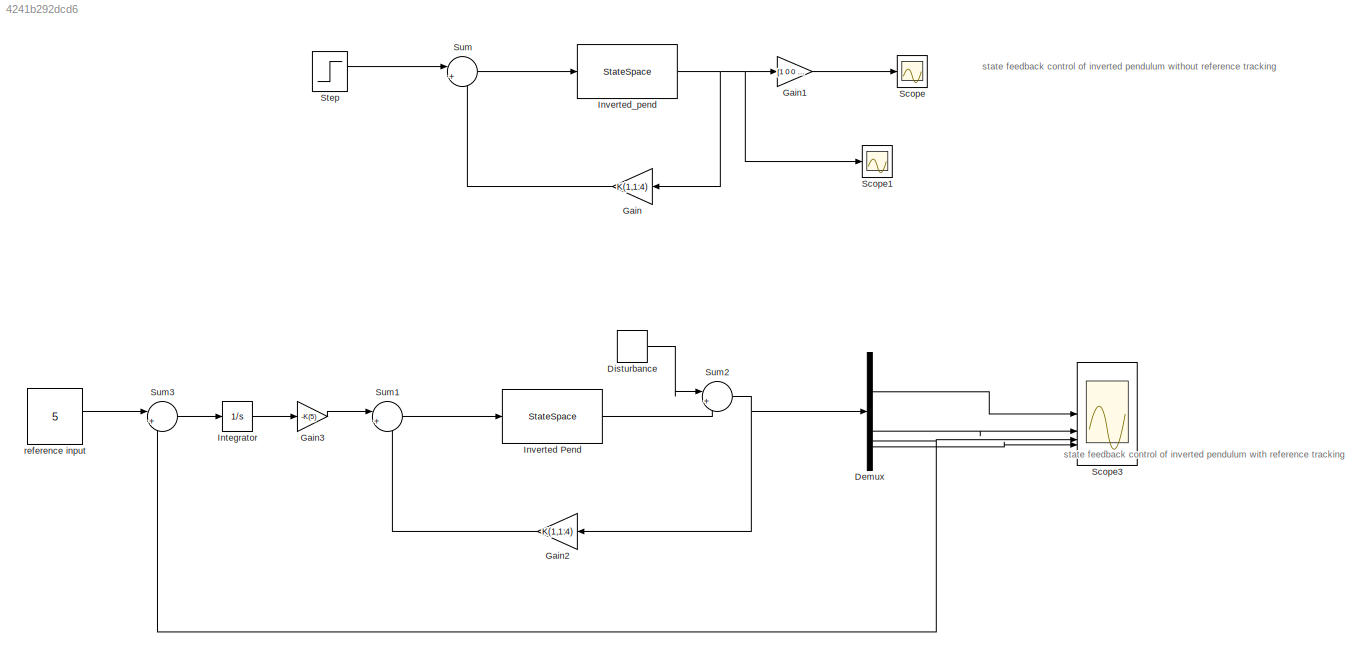
MODEL slx_4241b292dcd6
KIND model
CONFIG AbsTol = auto
CONFIG EnableMultiTasking = off
CONFIG FixedStep = auto
CONFIG MaxStep = 0.01
CONFIG MinStep = 0.0001
CONFIG RelTol = 1e-6
CONFIG SampleTimeConstraint = Unconstrained
CONFIG SolverName = VariableStepAuto
CONFIG StartTime = 0.0
CONFIG StopTime = 10.0
BLOCK [Demux] Demux
BLOCK [DiscretePulseGenerator] Disturbance
  Period = 10
  PulseType = Time based
  PulseWidth = 5
BLOCK [Gain] Gain
  Gain = K(1,1:4)
  Multiplication = Matrix(K*u)
  NameLocation = top
BLOCK [Gain] Gain1
  Gain = [1 0 0 0;0 0 0 0;0 0 1 0;0 0 0 0]
  Multiplication = Matrix(K*u)
BLOCK [Gain] Gain2
  Gain = K(1,1:4)
  Multiplication = Matrix(K*u)
  NameLocation = top
BLOCK [Gain] Gain3
  Gain = -K(5)
BLOCK [Integrator] Integrator
BLOCK [StateSpace] Inverted Pend
  A = A
  B = B
  C = eye(4)
  D = zeros(4,1)
  InitialCondition = [2 2 0 0];
BLOCK [StateSpace] Inverted_pend
  A = A
  B = B
  C = eye(4)
  D = zeros(4,1)
  InitialCondition = [2 2 0 0];
BLOCK [Scope] Scope
  Floating = off
  NumInputPorts = 1
  ScopeSpecificationString = Simulink.scopes.TimeScopeBlockCfg('CurrentConfiguration', extmgr.ConfigurationSet(extmgr.Configuration('Core','General UI',true,'FigureColor',[1 1 1]),extmgr.Configuration('Core','Source UI',true),extmgr.Configuration('Sources','WiredSimulink',true),extmgr.Configuration('Visuals','Time Domain',true,'SerializedDisplays',{struct('MinYLimReal','-13.65247','MaxYLimReal','20.91602','YLabelReal','','Min...<+1754ch>
BLOCK [Scope] Scope1
  Floating = off
  NumInputPorts = 1
  ScopeSpecificationString = Simulink.scopes.TimeScopeBlockCfg('CurrentConfiguration', extmgr.ConfigurationSet(extmgr.Configuration('Core','General UI',true),extmgr.Configuration('Core','Source UI',true),extmgr.Configuration('Sources','WiredSimulink',true,'DataLoggingVariableName','ScopeData1'),extmgr.Configuration('Visuals','Time Domain',true,'SerializedDisplays',{struct('MinYLimReal','-57.33848','MaxYLimReal','78.99557','YL...<+1478ch>
BLOCK [Scope] Scope3
  Floating = off
  NumInputPorts = 4
  ScopeSpecificationString = Simulink.scopes.TimeScopeBlockCfg('CurrentConfiguration', extmgr.ConfigurationSet(extmgr.Configuration('Core','General UI',true,'FigureColor',[1 1 1]),extmgr.Configuration('Core','Source UI',true),extmgr.Configuration('Sources','WiredSimulink',true,'DataLoggingVariableName','ScopeData3'),extmgr.Configuration('Visuals','Time Domain',true,'SerializedDisplays',{struct('MinYLimReal','-24.00973','MaxYL...<+4023ch>
BLOCK [Step] Step
  SampleTime = 0
BLOCK [Sum] Sum
  Inputs = |+-
BLOCK [Sum] Sum1
  Inputs = |+-
BLOCK [Sum] Sum2
  Inputs = |++
BLOCK [Sum] Sum3
  Inputs = |+-
BLOCK [Constant] reference input
  Value = 5
ANNOTATION (root): state feedback control of inverted pendulum without reference tracking
ANNOTATION (root): state feedback control of inverted pendulum with reference tracking
LINE Demux:1 -> Scope3:1
LINE Demux:2 -> Scope3:2
NET Demux:3 -> Scope3:3, Sum3:2
LINE Demux:4 -> Scope3:4
LINE Disturbance:1 -> Sum2:1
LINE Gain1:1 -> Scope:1
LINE Gain2:1 -> Sum1:2
LINE Gain3:1 -> Sum1:1
LINE Gain:1 -> Sum:2
LINE Integrator:1 -> Gain3:1
LINE Inverted Pend:1 -> Sum2:2
NET Inverted_pend:1 -> Gain1:1, Gain:1, Scope1:1
LINE Step:1 -> Sum:1
LINE Sum1:1 -> Inverted Pend:1
NET Sum2:1 -> Demux:1, Gain2:1
LINE Sum3:1 -> Integrator:1
LINE Sum:1 -> Inverted_pend:1
LINE reference input:1 -> Sum3:1
note: NET lines group one-source signal fan-out (src -> all destinations, sorted); 1:1 wires keep LINE
